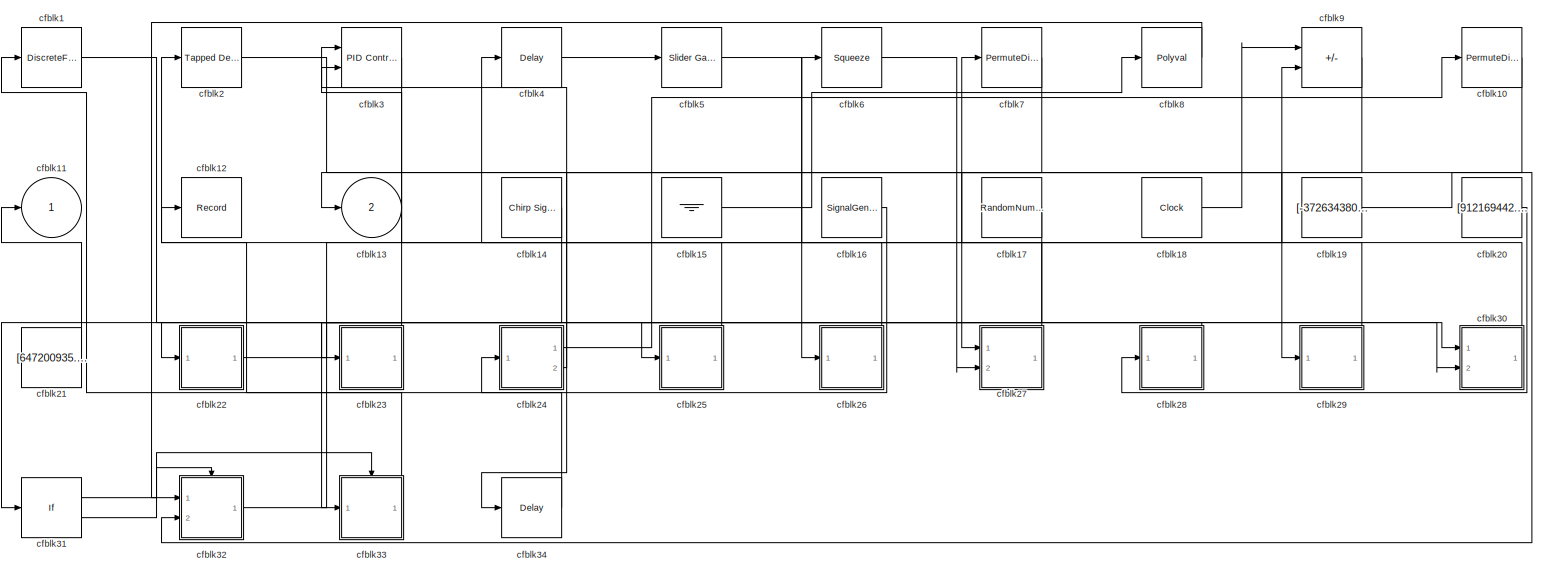
[diagram: root canvas - part 1/1, most of the canvas]
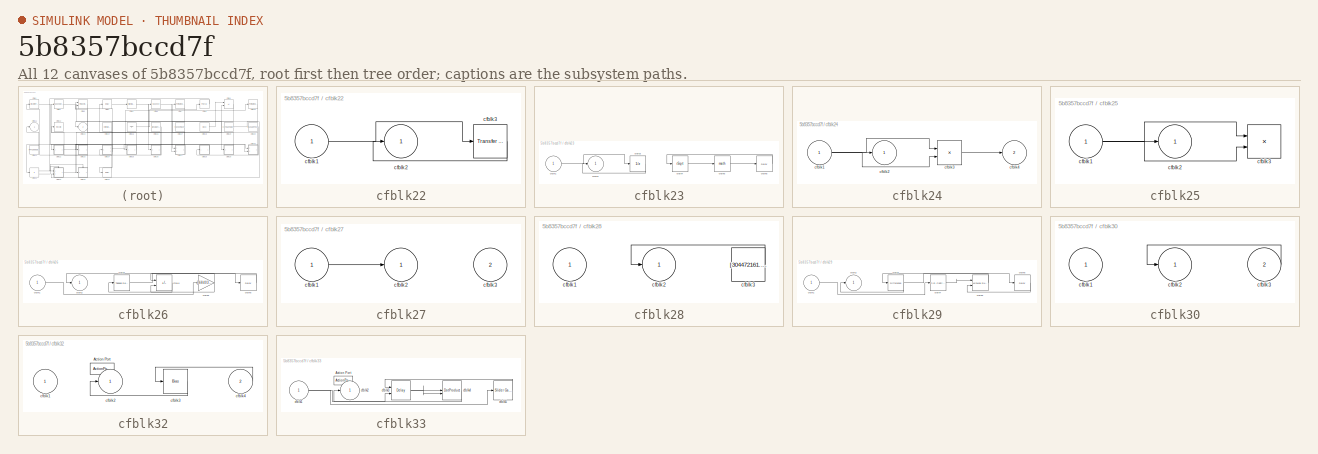
[diagram: thumbnail index - all 12 canvases of the model, root first then tree order]
MODEL slx_5b8357bccd7f
KIND model
CONFIG AbsTol = auto
CONFIG EnableMultiTasking = off
CONFIG FixedStep = auto
CONFIG MaxStep = auto
CONFIG MinStep = auto
CONFIG RelTol = 1e-3
CONFIG SampleTimeConstraint = Unconstrained
CONFIG SolverName = VariableStepAuto
CONFIG StartTime = 0.0
CONFIG StopTime = 10.0
BLOCK [DiscreteFir] cfblk1
  InputPortMap = u0
  OutputPortMap = o0
  Ports = [1, 1]
  SampleTime = 1
BLOCK [PermuteDimensions] cfblk10
BLOCK [Outport] cfblk11
BLOCK [Record] cfblk12
  FileSettingsInternal = {"entries":[{"content":{"excelSettings":{"content":{},"type":"Streamout.ExcelSettings"}},"type":"Streamout.FileSettingStorage","uuid":"1ddff4b1-aee2-4d4f-8768-343889fd0a63"}],"packageUris":["http://schema.mathworks.com/mf0/streamout_blocks/R2020a"],"version":"1.0"}
  Ports = [1]
  SignalsInternal = {"entries":[{"content":{"signals":[{"content":{"blockPath":["sampleModel262/cfblk12"],"channel":[],"dimensions":[1],"domain":"sampleModel262/cfblk12","lineColor":"#22b573","plots":[1],"port":1,"sid":[""],"signalID":10929,"signalName":"cfblk33"},"type":"RecordBlkView.Signal","uuid":"89b1e3ca-3335-489f-962e-920c012cb50a"}]},"type":"RecordBlkView.InputSignals","uuid":"d7eff131-c235-4bce-9e43-dd5def15...<+98ch>
  VisualizationBindings = {"sparklinesplugin":{"info":[{"bindingParametersList":[],"subplotID":1}]}}
BLOCK [Outport] cfblk13
  Port = 2
BLOCK [Reference] cfblk14  REF=simulink/Sources/Chirp Signal
  Ports = [0, 1]
  SourceBlock = simulink/Sources/Chirp Signal
  SourceProductBaseCode = SL
  SourceType = chirp
BLOCK [Ground] cfblk15
BLOCK [SignalGenerator] cfblk16
  Amplitude = [-706650495.719771]
  Ports = [0, 1]
  Units = rad/sec
  WaveForm = square
BLOCK [RandomNumber] cfblk17
  Mean = [-5605.543086]
  SampleTime = 0.1
  Seed = [921303411.000000]
  Variance = [80144.736989]
BLOCK [Clock] cfblk18
BLOCK [Constant] cfblk19
  SampleTime = 1
  Value = [-372634380.771367]
BLOCK [Reference] cfblk2  REF=simulink/Discrete/Tapped Delay
  Ports = [1, 1]
  SourceBlock = simulink/Discrete/Tapped Delay
  SourceProductBaseCode = SL
  SourceType = Tapped Delay Line
BLOCK [Constant] cfblk20
  SampleTime = 1
  Value = [912169442.842602]
BLOCK [Constant] cfblk21
  SampleTime = 1
  Value = [647200935.807795]
BLOCK [SubSystem] cfblk22
  Ports = [1, 1]
  RequestExecContextInheritance = off
BLOCK [Inport] cfblk22/cfblk1
BLOCK [Outport] cfblk22/cfblk2
BLOCK [Reference] cfblk22/cfblk3  REF=simulink/Discrete/Transfer Fcn
Real Zero
  Ports = [1, 1]
  SourceBlock = simulink/Discrete/Transfer Fcn\nReal Zero
  SourceProductBaseCode = SL
  SourceType = Transfer Fcn Real Zero
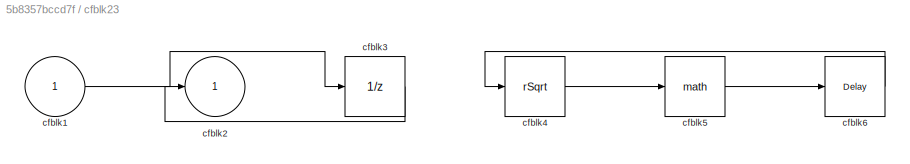
BLOCK [SubSystem] cfblk23
  Ports = [1, 1]
  RequestExecContextInheritance = off
BLOCK [Inport] cfblk23/cfblk1
BLOCK [Outport] cfblk23/cfblk2
BLOCK [UnitDelay] cfblk23/cfblk3
  HasFrameUpgradeWarning = on
BLOCK [Sqrt] cfblk23/cfblk4
  AlgorithmType = Newton-Raphson
  Operator = rSqrt
BLOCK [Math] cfblk23/cfblk5
  Ports = [1, 1]
BLOCK [Delay] cfblk23/cfblk6
  InputPortMap = u0
  Ports = [1, 1]
  SampleTime = 1
BLOCK [SubSystem] cfblk24
  Ports = [1, 2]
  RequestExecContextInheritance = off
BLOCK [Inport] cfblk24/cfblk1
BLOCK [Outport] cfblk24/cfblk2
BLOCK [Product] cfblk24/cfblk3
  Ports = [2, 1]
BLOCK [Outport] cfblk24/cfblk4
  Port = 2
BLOCK [SubSystem] cfblk25
  Ports = [1, 1]
  RequestExecContextInheritance = off
BLOCK [Inport] cfblk25/cfblk1
BLOCK [Outport] cfblk25/cfblk2
BLOCK [Product] cfblk25/cfblk3
  Ports = [2, 1]
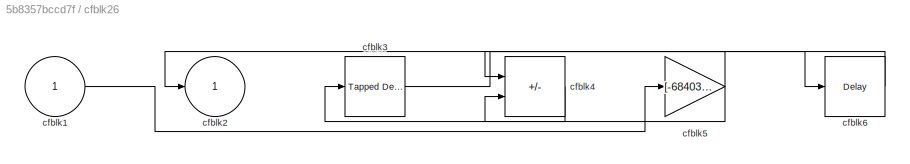
BLOCK [SubSystem] cfblk26
  Ports = [1, 1]
  RequestExecContextInheritance = off
BLOCK [Inport] cfblk26/cfblk1
BLOCK [Outport] cfblk26/cfblk2
BLOCK [Reference] cfblk26/cfblk3  REF=simulink/Discrete/Tapped Delay
  Ports = [1, 1]
  SourceBlock = simulink/Discrete/Tapped Delay
  SourceProductBaseCode = SL
  SourceType = Tapped Delay Line
BLOCK [Sum] cfblk26/cfblk4
  IconShape = rectangular
  Inputs = +-
  Ports = [2, 1]
BLOCK [Gain] cfblk26/cfblk5
  Gain = [-684037330.484193]
BLOCK [Delay] cfblk26/cfblk6
  InputPortMap = u0
  Ports = [1, 1]
  SampleTime = 1
BLOCK [SubSystem] cfblk27
  Ports = [2, 1]
  RequestExecContextInheritance = off
BLOCK [Inport] cfblk27/cfblk1
BLOCK [Outport] cfblk27/cfblk2
BLOCK [Inport] cfblk27/cfblk3
  Port = 2
BLOCK [SubSystem] cfblk28
  Ports = [1, 1]
  RequestExecContextInheritance = off
BLOCK [Inport] cfblk28/cfblk1
BLOCK [Outport] cfblk28/cfblk2
BLOCK [Constant] cfblk28/cfblk3
  SampleTime = 1
  Value = [304472161.839442]
BLOCK [SubSystem] cfblk29
  Ports = [1, 1]
  RequestExecContextInheritance = off
BLOCK [Inport] cfblk29/cfblk1
BLOCK [Outport] cfblk29/cfblk2
BLOCK [Reference] cfblk29/cfblk3  REF=simulink/Discrete/Difference
  Ports = [1, 1]
  SourceBlock = simulink/Discrete/Difference
  SourceProductBaseCode = SL
  SourceType = Difference
BLOCK [Reference] cfblk29/cfblk4  REF=slpidlib/PID Controller
  Ports = [1, 1]
  SourceBlock = slpidlib/PID Controller
  SourceProductBaseCode = SL
  SourceType = PID 1dof
BLOCK [Reference] cfblk29/cfblk5  REF=simulink/Math
Operations/MinMax
Running
Resettable
  Ports = [2, 1]
  SourceBlock = simulink/Math\nOperations/MinMax\nRunning\nResettable
  SourceProductBaseCode = SL
  SourceType = MinMax Running Resettable
BLOCK [Delay] cfblk29/cfblk6
  InputPortMap = u0
  Ports = [1, 1]
  SampleTime = 1
BLOCK [Reference] cfblk3  REF=slpidlib/PID Controller (2DOF)
  Ports = [2, 1]
  SourceBlock = slpidlib/PID Controller (2DOF)
  SourceProductBaseCode = SL
  SourceType = PID 2dof
BLOCK [SubSystem] cfblk30
  Ports = [2, 1]
  RequestExecContextInheritance = off
BLOCK [Inport] cfblk30/cfblk1
BLOCK [Outport] cfblk30/cfblk2
BLOCK [Inport] cfblk30/cfblk3
  Port = 2
BLOCK [If] cfblk31
  IfExpression = u1 >= 0
  Ports = [1, 2]
  SampleTime = 1
BLOCK [SubSystem] cfblk32
  Ports = [2, 1, 0, 0, 0, 0, 0, 1]
  RequestExecContextInheritance = off
  TreatAsAtomicUnit = on
BLOCK [ActionPort] cfblk32/Action Port
  ActionPortLabel = if(u1 >= 0)
BLOCK [Inport] cfblk32/cfblk1
BLOCK [Outport] cfblk32/cfblk2
BLOCK [Bias] cfblk32/cfblk3
  Bias = [986534338.049320]
  SaturateOnIntegerOverflow = off
BLOCK [Inport] cfblk32/cfblk4
  Port = 2
BLOCK [SubSystem] cfblk33
  Ports = [1, 1, 0, 0, 0, 0, 0, 1]
  RequestExecContextInheritance = off
  TreatAsAtomicUnit = on
BLOCK [ActionPort] cfblk33/Action Port
  ActionPortLabel = else
BLOCK [Inport] cfblk33/cfblk1
BLOCK [Outport] cfblk33/cfblk2
BLOCK [Delay] cfblk33/cfblk3
  DelayLengthSource = Input port
  InputPortMap = u0,p1
  Ports = [2, 1]
BLOCK [DotProduct] cfblk33/cfblk4
  OutDataTypeStr = Inherit: Inherit via internal rule
BLOCK [Reference] cfblk33/cfblk5  REF=simulink/Math
Operations/Slider
Gain
  Ports = [1, 1]
  SourceBlock = simulink/Math\nOperations/Slider\nGain
  SourceProductBaseCode = SL
  SourceType = Slider Gain
BLOCK [Delay] cfblk34
  InputPortMap = u0
  Ports = [1, 1]
  SampleTime = 1
BLOCK [Delay] cfblk4
  InputPortMap = u0
  Ports = [1, 1]
  SampleTime = 1
BLOCK [Reference] cfblk5  REF=simulink/Math
Operations/Slider
Gain
  Ports = [1, 1]
  SourceBlock = simulink/Math\nOperations/Slider\nGain
  SourceProductBaseCode = SL
  SourceType = Slider Gain
BLOCK [Squeeze] cfblk6
BLOCK [PermuteDimensions] cfblk7
BLOCK [Polyval] cfblk8
  Coefs = [ +2.081618890e-019, -1.441693666e-014, +4.719686976e-010, -8.536869453e-006, +1.621573104e-001, -8.087801117e+001 ]
BLOCK [Sum] cfblk9
  IconShape = rectangular
  Inputs = +-
  Ports = [2, 1]
LINE cfblk10:1 -> cfblk27:1
LINE cfblk14:1 -> cfblk33:1
LINE cfblk15:1 -> cfblk8:1
LINE cfblk16:1 -> cfblk24:1
LINE cfblk17:1 -> cfblk31:1
LINE cfblk18:1 -> cfblk9:1
LINE cfblk19:1 -> cfblk32:2
LINE cfblk1:1 -> cfblk27:2
LINE cfblk20:1 -> cfblk28:1
LINE cfblk21:1 -> cfblk11:1
LINE cfblk22/cfblk1:1 -> cfblk22/cfblk3:1
LINE cfblk22/cfblk3:1 -> cfblk22/cfblk2:1
LINE cfblk22:1 -> cfblk30:1
LINE cfblk23/cfblk1:1 -> cfblk23/cfblk3:1
LINE cfblk23/cfblk3:1 -> cfblk23/cfblk2:1
LINE cfblk23/cfblk4:1 -> cfblk23/cfblk5:1
LINE cfblk23/cfblk5:1 -> cfblk23/cfblk6:1
LINE cfblk23/cfblk6:1 -> cfblk23/cfblk4:1
LINE cfblk23:1 -> cfblk22:1
NET cfblk24/cfblk1:1 -> cfblk24/cfblk2:1, cfblk24/cfblk3:1, cfblk24/cfblk3:2
LINE cfblk24/cfblk3:1 -> cfblk24/cfblk4:1
LINE cfblk24:1 -> cfblk10:1
LINE cfblk24:2 -> cfblk3:1
NET cfblk25/cfblk1:1 -> cfblk25/cfblk2:1, cfblk25/cfblk3:1, cfblk25/cfblk3:2
LINE cfblk25:1 -> cfblk4:1
LINE cfblk26/cfblk1:1 -> cfblk26/cfblk5:1
LINE cfblk26/cfblk3:1 -> cfblk26/cfblk6:1
LINE cfblk26/cfblk4:1 -> cfblk26/cfblk3:1
NET cfblk26/cfblk5:1 -> cfblk26/cfblk2:1, cfblk26/cfblk4:2
LINE cfblk26/cfblk6:1 -> cfblk26/cfblk4:1
LINE cfblk26:1 -> cfblk2:1
LINE cfblk27/cfblk1:1 -> cfblk27/cfblk2:1
LINE cfblk27:1 -> cfblk6:1
LINE cfblk28/cfblk3:1 -> cfblk28/cfblk2:1
LINE cfblk28:1 -> cfblk25:1
LINE cfblk29/cfblk1:1 -> cfblk29/cfblk4:1
NET cfblk29/cfblk3:1 -> cfblk29/cfblk2:1, cfblk29/cfblk6:1
LINE cfblk29/cfblk4:1 -> cfblk29/cfblk5:1
LINE cfblk29/cfblk5:1 -> cfblk29/cfblk3:1
LINE cfblk29/cfblk6:1 -> cfblk29/cfblk5:2
LINE cfblk29:1 -> cfblk3:2
LINE cfblk2:1 -> cfblk29:1
LINE cfblk30/cfblk3:1 -> cfblk30/cfblk2:1
LINE cfblk30:1 -> cfblk7:1
LINE cfblk31:1 -> cfblk32:ifaction
LINE cfblk31:2 -> cfblk33:ifaction
LINE cfblk32/cfblk3:1 -> cfblk32/cfblk2:1
LINE cfblk32/cfblk4:1 -> cfblk32/cfblk3:1
LINE cfblk32:1 -> cfblk9:2
NET cfblk33/cfblk1:1 -> cfblk33/cfblk3:2, cfblk33/cfblk5:1
NET cfblk33/cfblk3:1 -> cfblk33/cfblk4:1, cfblk33/cfblk4:2
LINE cfblk33/cfblk4:1 -> cfblk33/cfblk2:1
LINE cfblk33/cfblk5:1 -> cfblk33/cfblk3:1
LINE cfblk33:1 -> cfblk12:1
LINE cfblk34:1 -> cfblk1:1
LINE cfblk3:1 -> cfblk23:1
LINE cfblk4:1 -> cfblk5:1
LINE cfblk5:1 -> cfblk26:1
LINE cfblk6:1 -> cfblk30:2
LINE cfblk7:1 -> cfblk34:1
LINE cfblk8:1 -> cfblk32:1
LINE cfblk9:1 -> cfblk13:1
note: NET lines group one-source signal fan-out (src -> all destinations, sorted); 1:1 wires keep LINE
